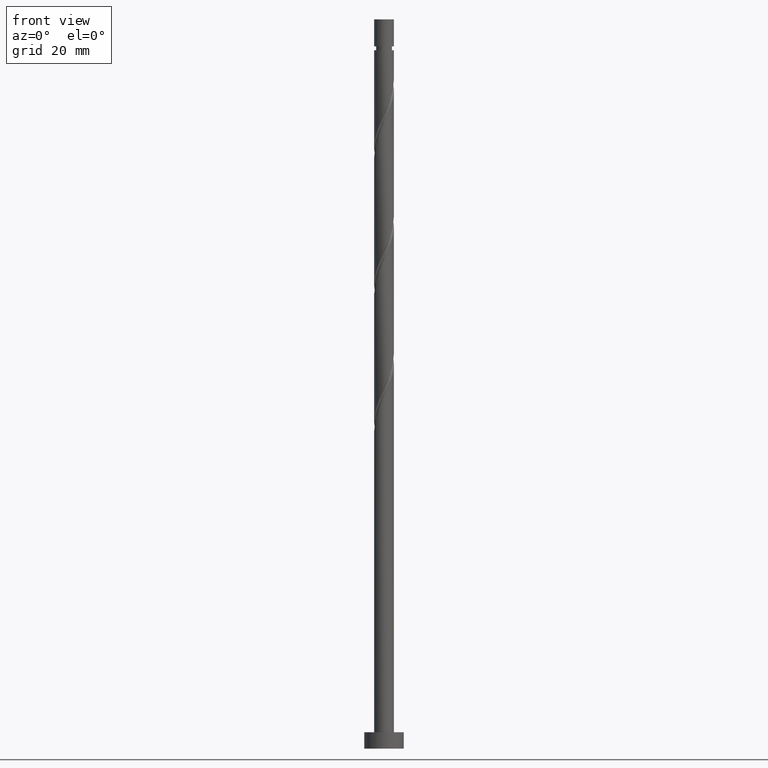
[diagram: clean part render]
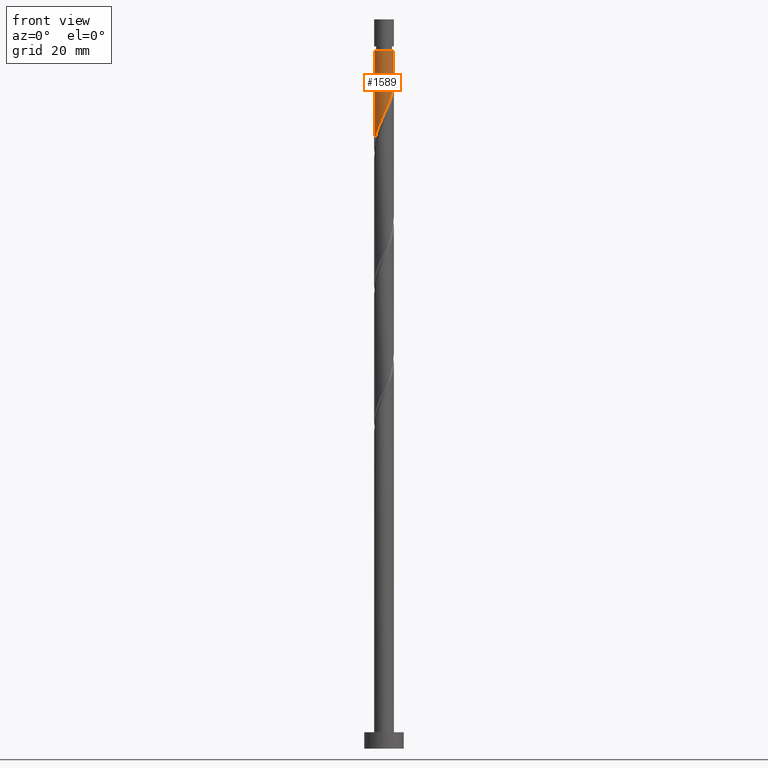
[diagram: same view with one face highlighted and labeled with its STEP entity id]
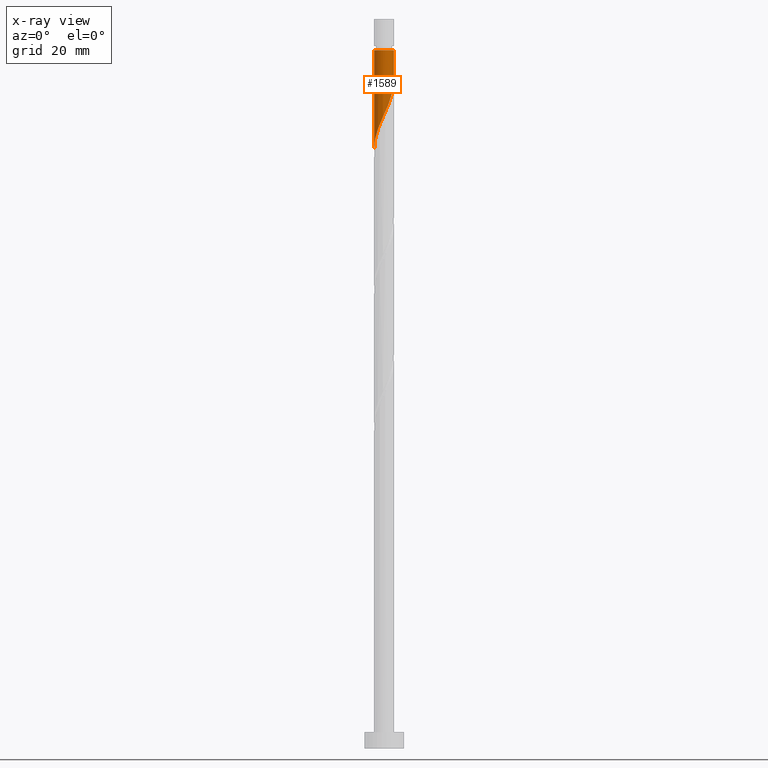
[diagram: x-ray of the same camera — body ghosted, the highlighted face saturated]
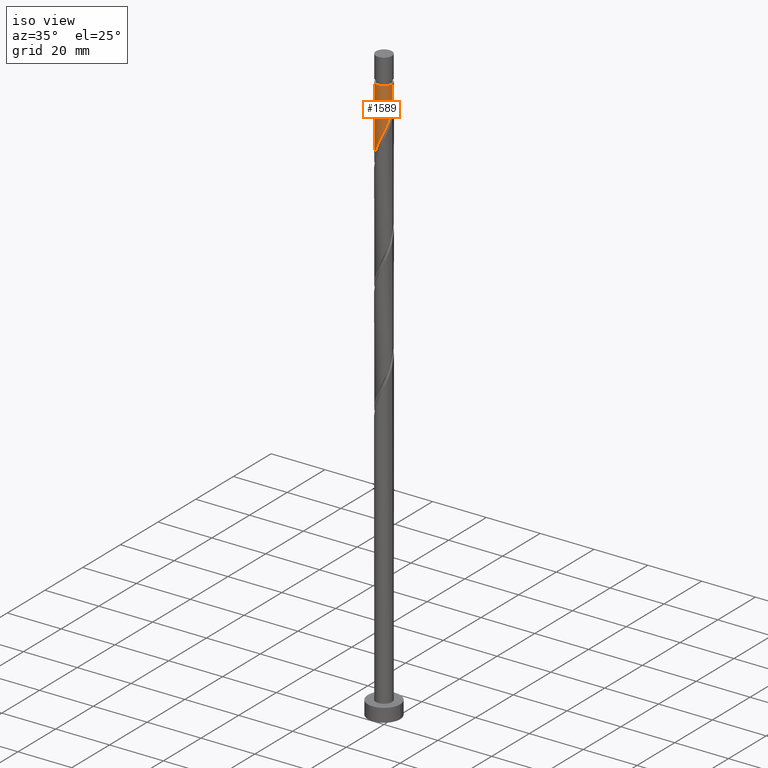
[diagram: same view with one face highlighted and labeled with its STEP entity id]
A machine part, front view. The second image highlights one B-rep face of the part: STEP entity #1589.
The next image is the same camera in x-ray: the body ghosted, the highlighted face saturated — about 0% of this face is hidden behind the body in this view.
A second angle (iso view) of the same face is appended — the face is thin or edge-on in the first view.
In plain terms, the highlighted cylindrical surface (edge-blend (fillet) strip) has radius 3 mm, axis along (-0, -0, -1).
Its self-contained STEP definition (entity closure, byte-faithful):
#7 = AXIS2_PLACEMENT_3D ( 'NONE', #1757, #794, #775 ) ;
#16 = EDGE_LOOP ( 'NONE', ( #424, #623, #1167, #167 ) ) ;
#39 = CARTESIAN_POINT ( 'NONE',  ( -2.999999999999999112, -4.681208760918736224E-15, 182.6515737103637491 ) ) ;
#141 = CARTESIAN_POINT ( 'NONE',  ( -2.999999999999999556, -0.2437693156111347681, 183.1912744477120896 ) ) ;
#162 = CARTESIAN_POINT ( 'NONE',  ( -2.396435889809652942, -1.804742371096832887, 186.9326261934462821 ) ) ;
#167 = ORIENTED_EDGE ( 'NONE', *, *, #1332, .F. ) ;
#177 = CARTESIAN_POINT ( 'NONE',  ( -1.894896698789861222, -2.325804484670903172, 188.5351902960104269 ) ) ;
#211 = FACE_OUTER_BOUND ( 'NONE', #16, .T. ) ;
#235 = CARTESIAN_POINT ( 'NONE',  ( 2.537251308848758047, -1.600736016882629675, 199.7531390139590712 ) ) ;
#254 = CARTESIAN_POINT ( 'NONE',  ( -0.2400118315905274136, -3.012488008736830647, 192.5416005524206184 ) ) ;
#283 = CARTESIAN_POINT ( 'NONE',  ( -1.283232999305656596, -2.711699295551225131, 190.1377543985744580 ) ) ;
#293 = CARTESIAN_POINT ( 'NONE',  ( -2.901834587494009909, -0.8438280090812978473, 184.5287800396000080 ) ) ;
#348 = LINE ( 'NONE', #938, #1198 ) ;
#357 = EDGE_CURVE ( 'NONE', #1390, #805, #810, .T. ) ;
#387 = CARTESIAN_POINT ( 'NONE',  ( 1.502725340646223096, -2.596500828149240547, 196.5480108088309237 ) ) ;
#407 = CARTESIAN_POINT ( 'NONE',  ( -0.9539730929374197199, -2.867511991263166582, 190.9390364498565020 ) ) ;
#424 = ORIENTED_EDGE ( 'NONE', *, *, #1090, .F. ) ;
#426 = CARTESIAN_POINT ( 'NONE',  ( 2.961593349985106816, -0.6013771789905505427, 202.1569851678052032 ) ) ;
#531 = DIRECTION ( 'NONE',  ( -0.000000000000000000, -0.000000000000000000, -1.000000000000000000 ) ) ;
#550 = CARTESIAN_POINT ( 'NONE',  ( 2.080442193850956745, -2.161425519892975711, 198.1505749113949832 ) ) ;
#568 = CARTESIAN_POINT ( 'NONE',  ( 2.999999999999999112, -7.178850495977614216E-16, 203.4849070436970919 ) ) ;
#588 = CARTESIAN_POINT ( 'NONE',  ( -3.000000000000000444, 0.000000000000000000, 222.0000000000000000 ) ) ;
#593 = CARTESIAN_POINT ( 'NONE',  ( -2.177300491905828750, -2.095722369502523108, 187.7339082447282692 ) ) ;
#623 = ORIENTED_EDGE ( 'NONE', *, *, #357, .T. ) ;
#663 = CARTESIAN_POINT ( 'NONE',  ( 0.000000000000000000, 0.000000000000000000, 212.5736518344719173 ) ) ;
#714 = CARTESIAN_POINT ( 'NONE',  ( 2.999999999999986677, 3.673940397442051486E-16, 212.5736518344719173 ) ) ;
#745 = LINE ( 'NONE', #588, #1053 ) ;
#756 = AXIS2_PLACEMENT_3D ( 'NONE', #663, #531, #1790 ) ;
#775 = DIRECTION ( 'NONE',  ( -1.000000000000000000, 0.000000000000000000, 0.000000000000000000 ) ) ;
#794 = DIRECTION ( 'NONE',  ( -0.000000000000000000, -0.000000000000000000, -1.000000000000000000 ) ) ;
#804 = CARTESIAN_POINT ( 'NONE',  ( 2.342886767063566023, -1.908814102736322349, 198.9518569626769704 ) ) ;
#805 = VERTEX_POINT ( 'NONE', #1554 ) ;
#810 = CIRCLE ( 'NONE', #756, 2.999999999999986677 ) ;
#831 = CARTESIAN_POINT ( 'NONE',  ( 2.990523579387029063, -0.2382618751084458475, 202.9582672190873325 ) ) ;
#853 = CARTESIAN_POINT ( 'NONE',  ( -1.612492905673892141, -2.555886599839282347, 189.3364723472923856 ) ) ;
#872 = CARTESIAN_POINT ( 'NONE',  ( 2.999999999999999112, -7.178850495977614216E-16, 203.4849070436970919 ) ) ;
#899 = EDGE_CURVE ( 'NONE', #805, #1352, #745, .T. ) ;
#938 = CARTESIAN_POINT ( 'NONE',  ( 3.000000000000000444, 3.673940397442060361E-16, 222.0000000000000000 ) ) ;
#980 =( BOUNDED_CURVE ( )  B_SPLINE_CURVE ( 2, ( #568, #1691, #831, #426, #994, #1656, #235, #804, #550, #1520, #387, #1109, #1510, #1242, #1663, #254, #1673, #407, #283, #853, #177, #593, #162, #1560, #1287, #293, #1571, #141, #39 ),
 .UNSPECIFIED., .F., .T. ) 
 B_SPLINE_CURVE_WITH_KNOTS ( ( 3, 2, 2, 2, 2, 2, 2, 2, 2, 2, 2, 2, 2, 2, 3 ),
 ( 0.3045271625973833274, 0.3076923076923077094, 0.3173076923076922906, 0.3269230769230769273, 0.3365384615384615641, 0.3461538461538461453, 0.3557692307692307820, 0.3653846153846153633, 0.3750000000000000000, 0.3846153846153846367, 0.3942307692307692180, 0.4038461538461538547, 0.4134615384615384359, 0.4230769230769230727, 0.4295271625973833274 ),
 .UNSPECIFIED. ) 
 CURVE ( )  GEOMETRIC_REPRESENTATION_ITEM ( )  RATIONAL_B_SPLINE_CURVE ( ( 0.9061636035682822943, 0.9069090390690709436, 0.9090909090909273793, 0.9024626128164311423, 0.9090909090909273793, 0.9024626128164311423, 0.9090909090909273793, 0.9024626128164311423, 0.9090909090909273793, 0.9024626128164311423, 0.9090909090909273793, 0.9024626128164311423, 0.9090909090909273793, 0.9024626128164311423, 0.9090909090909273793, 0.9024626128164311423, 0.9090909090909273793, 0.9024626128164311423, 0.9090909090909273793, 0.9024626128164311423, 0.9090909090909273793, 0.9024626128164311423, 0.9090909090909273793, 0.9024626128164311423, 0.9090909090909273793, 0.9024626128164311423, 0.9090909090909273793, 0.9046444828382875780, 0.9061636035682822943 ) ) 
 REPRESENTATION_ITEM ( '' )  );
#994 = CARTESIAN_POINT ( 'NONE',  ( 2.846604600309527111, -0.9470175550097444939, 201.3557031165232445 ) ) ;
#1053 = VECTOR ( 'NONE', #1172, 1000.000000000000000 ) ;
#1090 = EDGE_CURVE ( 'NONE', #1390, #1447, #348, .T. ) ;
#1109 = CARTESIAN_POINT ( 'NONE',  ( 1.187453060654100057, -2.778964719248851356, 195.7467287575488228 ) ) ;
#1167 = ORIENTED_EDGE ( 'NONE', *, *, #899, .T. ) ;
#1172 = DIRECTION ( 'NONE',  ( -0.000000000000000000, -0.000000000000000000, -1.000000000000000000 ) ) ;
#1198 = VECTOR ( 'NONE', #1211, 1000.000000000000000 ) ;
#1211 = DIRECTION ( 'NONE',  ( -0.000000000000000000, -0.000000000000000000, -1.000000000000000000 ) ) ;
#1242 = CARTESIAN_POINT ( 'NONE',  ( 0.4878980450008938430, -2.982389173091086754, 194.1441646549846780 ) ) ;
#1287 = CARTESIAN_POINT ( 'NONE',  ( -2.758702937603743077, -1.178795190886220201, 185.3300620908821941 ) ) ;
#1332 = EDGE_CURVE ( 'NONE', #1447, #1352, #980, .T. ) ;
#1352 = VERTEX_POINT ( 'NONE', #1704 ) ;
#1390 = VERTEX_POINT ( 'NONE', #714 ) ;
#1447 = VERTEX_POINT ( 'NONE', #872 ) ;
#1510 = CARTESIAN_POINT ( 'NONE',  ( 0.8376755528274978380, -2.880676946169970609, 194.9454467062667788 ) ) ;
#1520 = CARTESIAN_POINT ( 'NONE',  ( 1.817997620638345024, -2.414036937049629294, 197.3492928601129393 ) ) ;
#1554 = CARTESIAN_POINT ( 'NONE',  ( -2.999999999999986677, 0.000000000000000000, 212.5736518344719173 ) ) ;
#1560 = CARTESIAN_POINT ( 'NONE',  ( -2.615571287713474025, -1.513762372691142222, 186.1313441421642096 ) ) ;
#1571 = CARTESIAN_POINT ( 'NONE',  ( -2.960644198141480388, -0.4843407189274800406, 183.7274979883180777 ) ) ;
#1589 = ADVANCED_FACE ( 'NONE', ( #211 ), #1622, .T. ) ;
#1622 = CYLINDRICAL_SURFACE ( 'NONE', #7, 3.000000000000000444 ) ;
#1656 = CARTESIAN_POINT ( 'NONE',  ( 2.731615850633948739, -1.292657931028935892, 200.5544210652410868 ) ) ;
#1663 = CARTESIAN_POINT ( 'NONE',  ( 0.1239431067051833257, -2.997438590913960255, 193.3428826037027193 ) ) ;
#1673 = CARTESIAN_POINT ( 'NONE',  ( -0.5969924622639732892, -2.940000000000001279, 191.7403185011386029 ) ) ;
#1691 = CARTESIAN_POINT ( 'NONE',  ( 2.999999999999999112, -0.1193193910103082372, 203.2207361280641749 ) ) ;
#1704 = CARTESIAN_POINT ( 'NONE',  ( -2.999999999999999112, -4.681208760918735436E-15, 182.6515737103637491 ) ) ;
#1757 = CARTESIAN_POINT ( 'NONE',  ( 0.000000000000000000, 0.000000000000000000, 222.0000000000000000 ) ) ;
#1790 = DIRECTION ( 'NONE',  ( -1.000000000000000000, 0.000000000000000000, 0.000000000000000000 ) ) ;